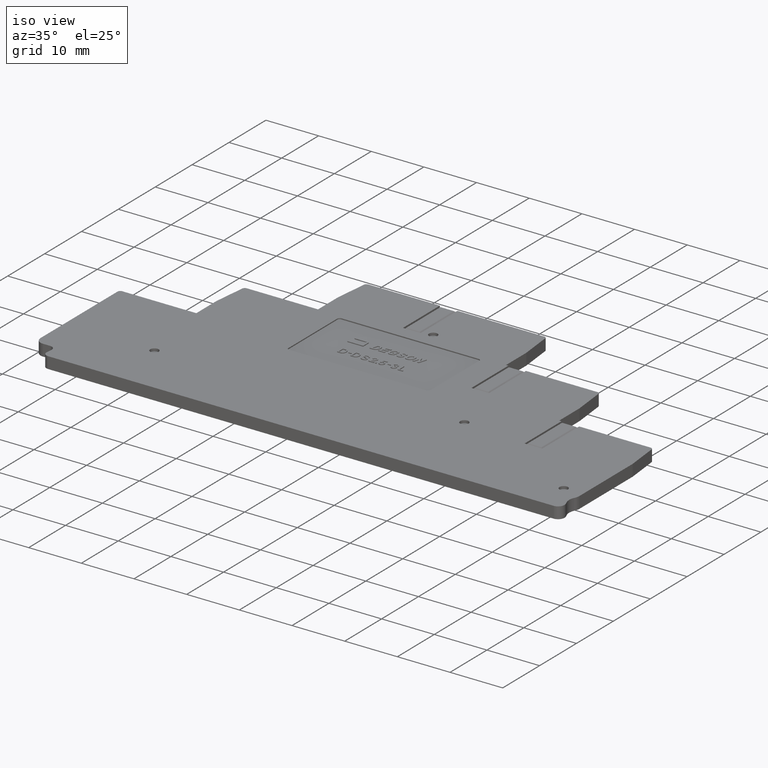
[diagram: clean part render]
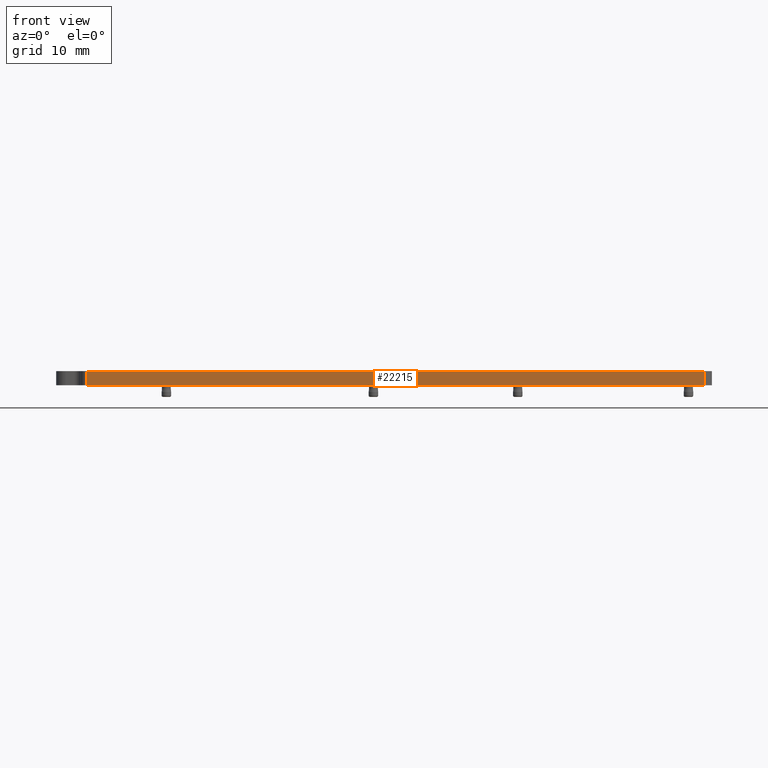
[diagram: tour spotlight — one face highlighted and labeled with its STEP entity id]
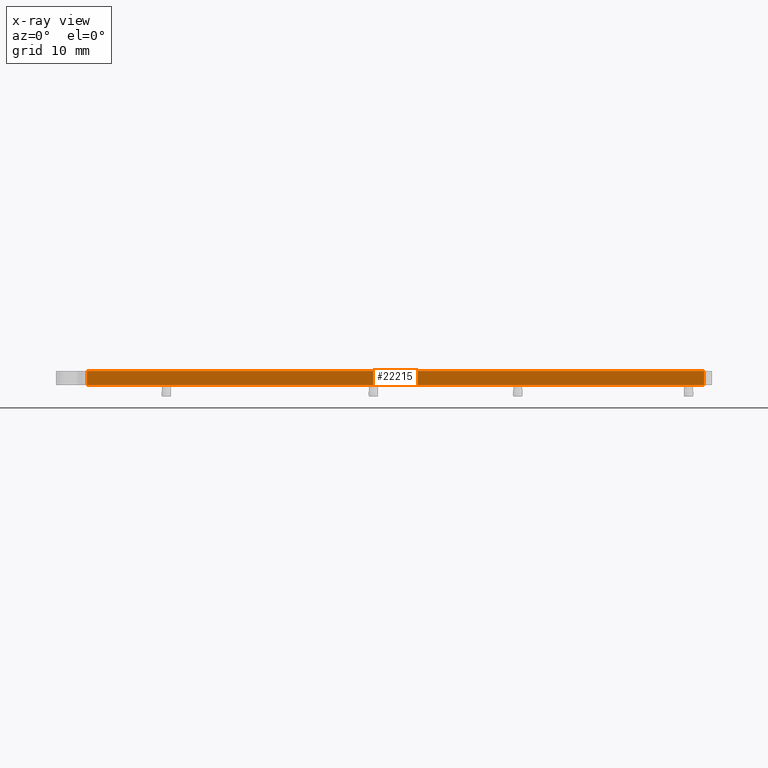
[diagram: x-ray of the same camera — body ghosted, this tour face saturated]
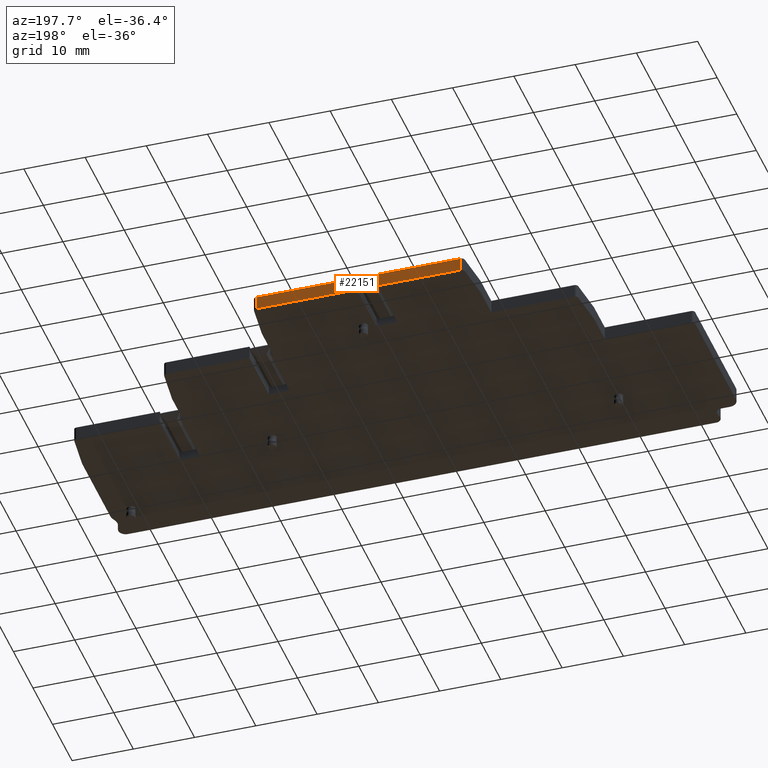
[diagram: tour spotlight — one face highlighted and labeled with its STEP entity id]
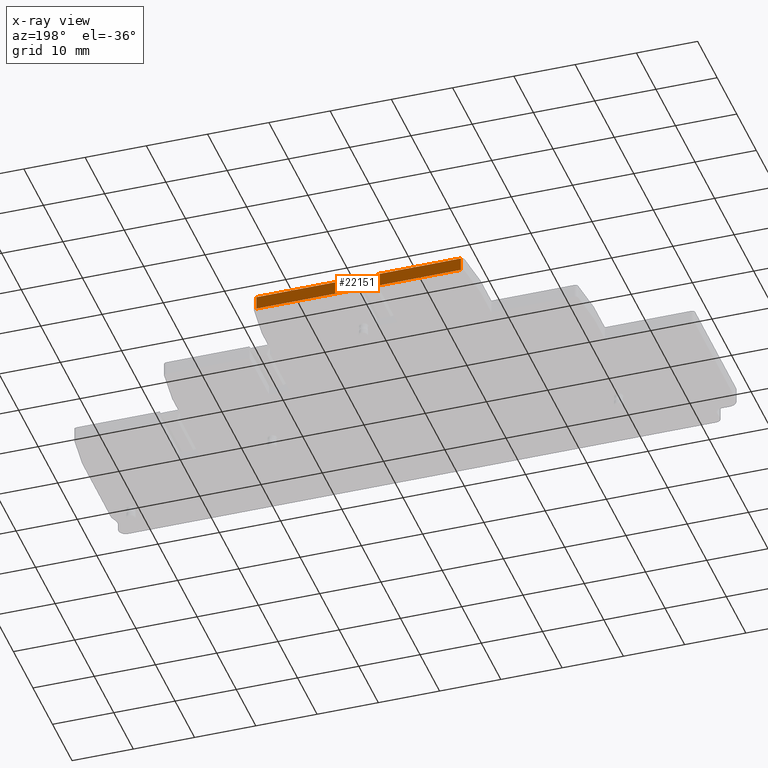
[diagram: x-ray of the same camera — body ghosted, this tour face saturated]
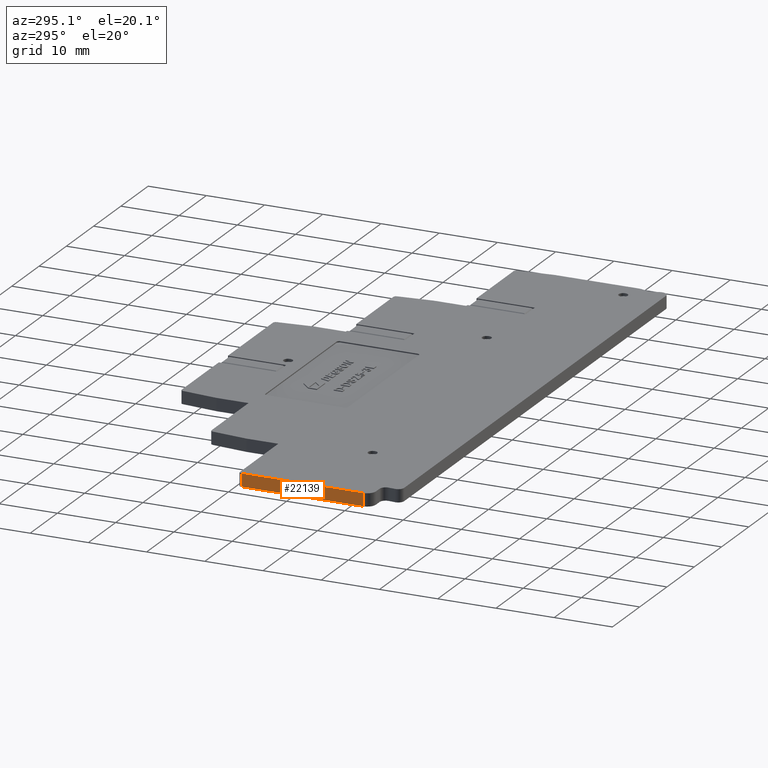
[diagram: tour spotlight — one face highlighted and labeled with its STEP entity id]
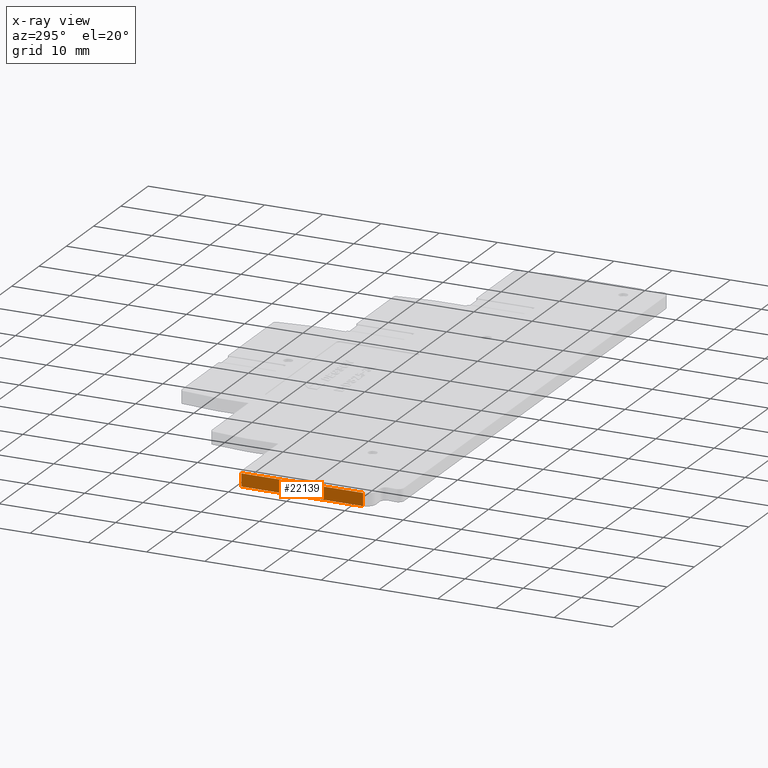
[diagram: x-ray of the same camera — body ghosted, this tour face saturated]
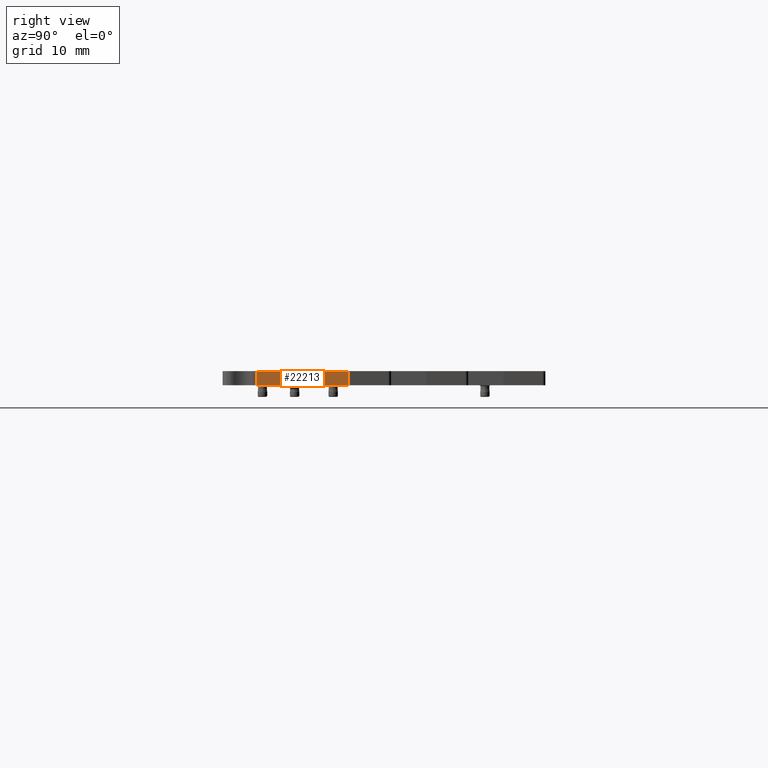
[diagram: tour spotlight — one face highlighted and labeled with its STEP entity id]
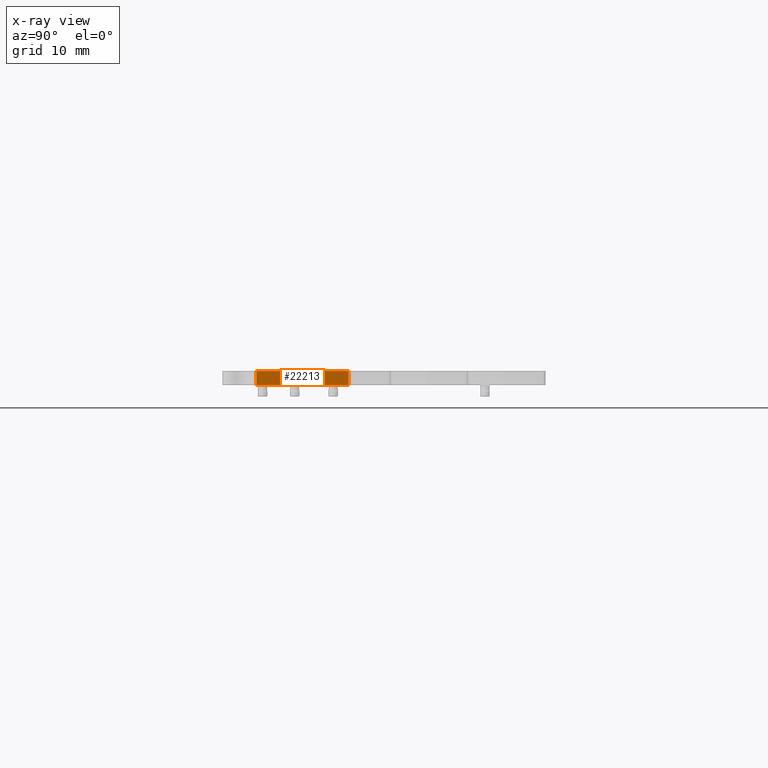
[diagram: x-ray of the same camera — body ghosted, this tour face saturated]
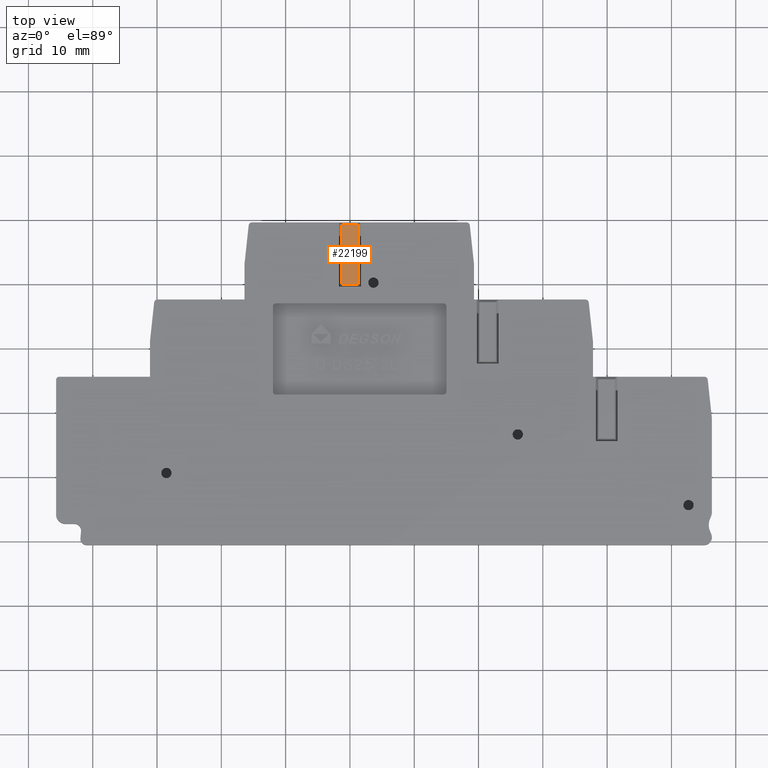
[diagram: tour spotlight — one face highlighted and labeled with its STEP entity id]
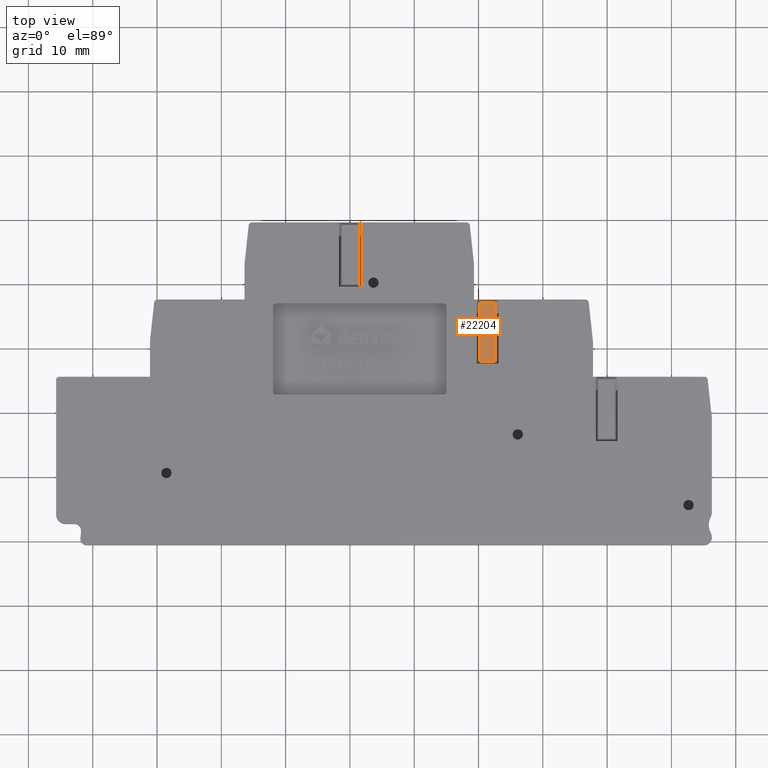
[diagram: tour spotlight — one face highlighted and labeled with its STEP entity id]
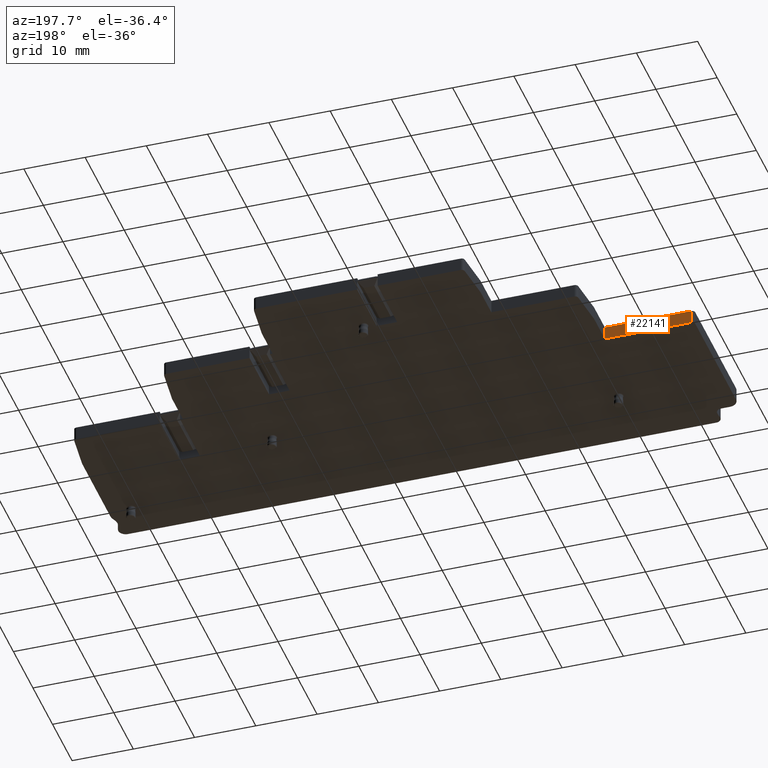
[diagram: tour spotlight — one face highlighted and labeled with its STEP entity id]
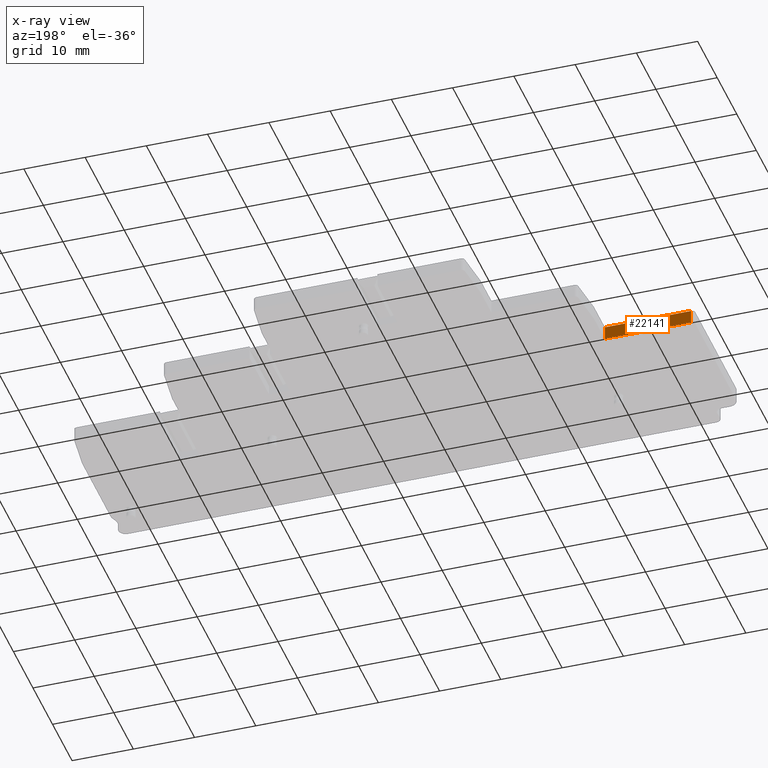
[diagram: x-ray of the same camera — body ghosted, this tour face saturated]
A machine part: a face-by-face anatomy tour. The part has 1172 B-rep faces; the first image is the clean iso view, then the 7 largest visible faces are spotlighted one at a time (largest first), each with its STEP entity span.

Face 1 — front view, entity #22215. An x-ray twin of the same camera follows (body ghosted, this face saturated) — the face is partly hidden behind the body. In plain terms, the highlighted planar face has unit normal (0, 1, 0).
Definition (entity closure, byte-faithful):
#485=PLANE('',#23592);
#1517=LINE('',#29904,#4055);
#2601=LINE('',#33256,#5139);
#2783=LINE('',#33898,#5321);
#2784=LINE('',#33899,#5322);
#4055=VECTOR('',#24353,1000.);
#5139=VECTOR('',#26625,1000.);
#5321=VECTOR('',#27101,1000.);
#5322=VECTOR('',#27102,1000.);
#9615=ORIENTED_EDGE('',*,*,#14800,.T.);
#9616=ORIENTED_EDGE('',*,*,#13165,.T.);
#9617=ORIENTED_EDGE('',*,*,#14801,.F.);
#9618=ORIENTED_EDGE('',*,*,#14535,.T.);
#13165=EDGE_CURVE('',#16450,#16448,#1517,.T.);
#14535=EDGE_CURVE('',#17391,#17393,#2601,.T.);
#14800=EDGE_CURVE('',#17393,#16450,#2783,.T.);
#14801=EDGE_CURVE('',#17391,#16448,#2784,.T.);
#16448=VERTEX_POINT('',#29902);
#16450=VERTEX_POINT('',#29905);
#17391=VERTEX_POINT('',#33251);
#17393=VERTEX_POINT('',#33255);
#19617=EDGE_LOOP('',(#9615,#9616,#9617,#9618));
#20899=FACE_BOUND('',#19617,.T.);
#22215=ADVANCED_FACE('',(#20899),#485,.F.);
#23592=AXIS2_PLACEMENT_3D('',#33897,#27099,#27100);
#24353=DIRECTION('',(0.,0.,-1.));
#26625=DIRECTION('',(0.,0.,1.));
#27099=DIRECTION('',(0.,1.,0.));
#27100=DIRECTION('',(0.,0.,1.));
#27101=DIRECTION('',(-1.,0.,0.));
#27102=DIRECTION('',(-1.,0.,0.));
#29902=CARTESIAN_POINT('',(-40.916902825996,-40.5999999999999,50.0000000020164));
#29904=CARTESIAN_POINT('',(-40.916902825996,-40.5999999999999,50.));
#29905=CARTESIAN_POINT('',(-40.916902825996,-40.5999999999999,52.2));
#33251=CARTESIAN_POINT('',(55.0941030948453,-40.5999999999999,50.));
#33255=CARTESIAN_POINT('',(55.0941030948453,-40.5999999999999,52.2));
#33256=CARTESIAN_POINT('',(55.0941030948453,-40.5999999999999,52.2000000020164));
#33897=CARTESIAN_POINT('',(56.300000000238,-40.5999999999999,50.));
#33898=CARTESIAN_POINT('',(56.300000000238,-40.5999999999999,52.2));
#33899=CARTESIAN_POINT('',(18.4999999999513,-40.5999999999999,50.0000000020164));

Face 2 — auxiliary view, entity #22151. An x-ray twin of the same camera follows (body ghosted, this face saturated) — the face is partly hidden behind the body. In plain terms, the highlighted planar face has unit normal (0, -1, 0).
Definition (entity closure, byte-faithful):
#427=PLANE('',#23513);
#2630=LINE('',#33398,#5168);
#2631=LINE('',#33400,#5169);
#2632=LINE('',#33402,#5170);
#2633=LINE('',#33404,#5171);
#2634=LINE('',#33406,#5172);
#2635=LINE('',#33408,#5173);
#2636=LINE('',#33410,#5174);
#2637=LINE('',#33412,#5175);
#2638=LINE('',#33414,#5176);
#2639=LINE('',#33416,#5177);
#2640=LINE('',#33418,#5178);
#2641=LINE('',#33420,#5179);
#5168=VECTOR('',#26788,1000.);
#5169=VECTOR('',#26791,1000.);
#5170=VECTOR('',#26792,1000.);
#5171=VECTOR('',#26793,1000.);
#5172=VECTOR('',#26794,1000.);
#5173=VECTOR('',#26795,1000.);
#5174=VECTOR('',#26796,1000.);
#5175=VECTOR('',#26797,1000.);
#5176=VECTOR('',#26798,1000.);
#5177=VECTOR('',#26799,1000.);
#5178=VECTOR('',#26800,1000.);
#5179=VECTOR('',#26801,1000.);
#8952=ORIENTED_EDGE('',*,*,#14596,.T.);
#8953=ORIENTED_EDGE('',*,*,#14597,.T.);
#8954=ORIENTED_EDGE('',*,*,#14598,.T.);
#8955=ORIENTED_EDGE('',*,*,#14599,.F.);
#8956=ORIENTED_EDGE('',*,*,#14600,.T.);
#8957=ORIENTED_EDGE('',*,*,#14601,.T.);
#8958=ORIENTED_EDGE('',*,*,#14602,.T.);
#8959=ORIENTED_EDGE('',*,*,#14603,.F.);
#8960=ORIENTED_EDGE('',*,*,#14604,.T.);
#8961=ORIENTED_EDGE('',*,*,#14605,.T.);
#8962=ORIENTED_EDGE('',*,*,#14606,.T.);
#8963=ORIENTED_EDGE('',*,*,#14607,.F.);
#14596=EDGE_CURVE('',#17438,#17439,#2630,.T.);
#14597=EDGE_CURVE('',#17439,#17440,#2631,.T.);
#14598=EDGE_CURVE('',#17440,#17441,#2632,.T.);
#14599=EDGE_CURVE('',#17442,#17441,#2633,.T.);
#14600=EDGE_CURVE('',#17442,#17443,#2634,.T.);
#14601=EDGE_CURVE('',#17443,#17444,#2635,.T.);
#14602=EDGE_CURVE('',#17444,#17445,#2636,.T.);
#14603=EDGE_CURVE('',#17446,#17445,#2637,.T.);
#14604=EDGE_CURVE('',#17446,#17447,#2638,.T.);
#14605=EDGE_CURVE('',#17447,#17448,#2639,.T.);
#14606=EDGE_CURVE('',#17448,#17449,#2640,.T.);
#14607=EDGE_CURVE('',#17438,#17449,#2641,.T.);
#17438=VERTEX_POINT('',#33395);
#17439=VERTEX_POINT('',#33397);
#17440=VERTEX_POINT('',#33401);
#17441=VERTEX_POINT('',#33403);
#17442=VERTEX_POINT('',#33405);
#17443=VERTEX_POINT('',#33407);
#17444=VERTEX_POINT('',#33409);
#17445=VERTEX_POINT('',#33411);
#17446=VERTEX_POINT('',#33413);
#17447=VERTEX_POINT('',#33415);
#17448=VERTEX_POINT('',#33417);
#17449=VERTEX_POINT('',#33419);
#19536=EDGE_LOOP('',(#8952,#8953,#8954,#8955,#8956,#8957,#8958,#8959,#8960,
#8961,#8962,#8963));
#20818=FACE_BOUND('',#19536,.T.);
#22151=ADVANCED_FACE('',(#20818),#427,.F.);
#23513=AXIS2_PLACEMENT_3D('',#33399,#26789,#26790);
#26788=DIRECTION('',(0.,0.,1.));
#26789=DIRECTION('',(2.28380961825284E-15,-1.,0.));
#26790=DIRECTION('',(1.,2.28463081786145E-15,0.));
#26791=DIRECTION('',(1.,2.28380961825284E-15,0.));
#26792=DIRECTION('',(0.,0.,-1.));
#26793=DIRECTION('',(-1.,2.08445276317359E-9,-2.10868151333993E-9));
#26794=DIRECTION('',(0.,0.,1.));
#26795=DIRECTION('',(1.,2.28380961825284E-15,0.));
#26796=DIRECTION('',(0.,0.,-1.));
#26797=DIRECTION('',(1.,2.28380961825284E-15,0.));
#26798=DIRECTION('',(0.,0.,1.));
#26799=DIRECTION('',(-1.,2.08445276317359E-9,2.37226670250741E-9));
#26800=DIRECTION('',(0.,0.,-1.));
#26801=DIRECTION('',(1.,2.28380961825284E-15,0.));
#33395=CARTESIAN_POINT('',(-15.250955103733,9.59999999999987,50.));
#33397=CARTESIAN_POINT('',(-15.250955103733,9.59999999999987,52.2));
#33398=CARTESIAN_POINT('',(-15.250955103733,9.59999999999987,52.2));
#33399=CARTESIAN_POINT('',(-16.4000000000002,9.59999999999987,50.));
#33400=CARTESIAN_POINT('',(-16.4000000000002,9.59999999999987,52.2));
#33401=CARTESIAN_POINT('',(-1.67500012629987,9.5999999999999,52.2));
#33402=CARTESIAN_POINT('',(-1.67500012629987,9.5999999999999,50.));
#33403=CARTESIAN_POINT('',(-1.67500012629987,9.5999999999999,51.800000000079));
#33404=CARTESIAN_POINT('',(3.47500000004843,9.5999999950064,51.800000005588));
#33405=CARTESIAN_POINT('',(1.67499987370023,9.59999999999991,51.800000000079));
#33406=CARTESIAN_POINT('',(1.67499987370023,9.59999999999991,50.));
#33407=CARTESIAN_POINT('',(1.67499987370023,9.59999999999991,52.2));
#33408=CARTESIAN_POINT('',(-16.4000000000002,9.59999999999987,52.2));
#33409=CARTESIAN_POINT('',(18.150955103419,9.59999999999994,52.2));
#33410=CARTESIAN_POINT('',(18.150955103419,9.59999999999994,50.));
#33411=CARTESIAN_POINT('',(18.150955103419,9.59999999999994,50.));
#33412=CARTESIAN_POINT('',(-16.4000000000002,9.59999999999987,50.));
#33413=CARTESIAN_POINT('',(1.67499987370023,9.59999999999991,50.));
#33414=CARTESIAN_POINT('',(1.67499987370023,9.59999999999991,50.));
#33415=CARTESIAN_POINT('',(1.67499987370023,9.59999999999991,51.5999999999112));
#33416=CARTESIAN_POINT('',(1.67499987374865,9.5999999987584,51.5999999979836));
#33417=CARTESIAN_POINT('',(-1.67500012629987,9.5999999999999,51.5999999999111));
#33418=CARTESIAN_POINT('',(-1.67500012629987,9.5999999999999,50.));
#33419=CARTESIAN_POINT('',(-1.67500012629987,9.5999999999999,50.));
#33420=CARTESIAN_POINT('',(-16.4000000000002,9.59999999999987,50.));

Face 3 — auxiliary view, entity #22139. An x-ray twin of the same camera follows (body ghosted, this face saturated) — the face is partly hidden behind the body. In plain terms, the highlighted planar face has unit normal (1, 0, 0).
Definition (entity closure, byte-faithful):
#420=PLANE('',#23491);
#1522=LINE('',#29916,#4060);
#2605=LINE('',#33328,#5143);
#2606=LINE('',#33330,#5144);
#2607=LINE('',#33332,#5145);
#4060=VECTOR('',#24364,1000.);
#5143=VECTOR('',#26721,1000.);
#5144=VECTOR('',#26722,1000.);
#5145=VECTOR('',#26723,1000.);
#8904=ORIENTED_EDGE('',*,*,#13171,.T.);
#8905=ORIENTED_EDGE('',*,*,#14561,.T.);
#8906=ORIENTED_EDGE('',*,*,#14562,.T.);
#8907=ORIENTED_EDGE('',*,*,#14563,.F.);
#13171=EDGE_CURVE('',#16454,#16455,#1522,.T.);
#14561=EDGE_CURVE('',#16455,#17416,#2605,.T.);
#14562=EDGE_CURVE('',#17416,#17417,#2606,.T.);
#14563=EDGE_CURVE('',#16454,#17417,#2607,.T.);
#16454=VERTEX_POINT('',#29917);
#16455=VERTEX_POINT('',#29918);
#17416=VERTEX_POINT('',#33329);
#17417=VERTEX_POINT('',#33331);
#19524=EDGE_LOOP('',(#8904,#8905,#8906,#8907));
#20806=FACE_BOUND('',#19524,.T.);
#22139=ADVANCED_FACE('',(#20806),#420,.F.);
#23491=AXIS2_PLACEMENT_3D('',#33327,#26719,#26720);
#24364=DIRECTION('',(0.,0.,1.));
#26719=DIRECTION('',(1.,3.75856753128315E-15,0.));
#26720=DIRECTION('',(-3.76088049591772E-15,1.,0.));
#26721=DIRECTION('',(-3.75856753128315E-15,1.,0.));
#26722=DIRECTION('',(0.,0.,-1.));
#26723=DIRECTION('',(-3.75856753128315E-15,1.,0.));
#29916=CARTESIAN_POINT('',(-45.6999999996991,-35.8000000000001,49.05));
#29917=CARTESIAN_POINT('',(-45.6999999996991,-35.8000000000001,50.));
#29918=CARTESIAN_POINT('',(-45.6999999996991,-35.8000000000001,52.2));
#33327=CARTESIAN_POINT('',(-45.7000000000001,-26.3999999999996,50.));
#33328=CARTESIAN_POINT('',(-45.7000000000002,-1.7176653617964E-13,52.2));
#33329=CARTESIAN_POINT('',(-45.7000000000001,-14.8999970315313,52.2));
#33330=CARTESIAN_POINT('',(-45.7000000000001,-14.8999999999998,50.));
#33331=CARTESIAN_POINT('',(-45.7000000000001,-14.8999999999998,50.));
#33332=CARTESIAN_POINT('',(-45.7000000000002,-1.7176653617964E-13,50.));

Face 4 — right view, entity #22213. An x-ray twin of the same camera follows (body ghosted, this face saturated) — the face is partly hidden behind the body. In plain terms, the highlighted planar face has unit normal (-1, -0, 0).
Definition (entity closure, byte-faithful):
#483=PLANE('',#23587);
#2602=LINE('',#33258,#5140);
#2708=LINE('',#33575,#5246);
#2781=LINE('',#33724,#5319);
#2782=LINE('',#33725,#5320);
#5140=VECTOR('',#26628,1000.);
#5246=VECTOR('',#26936,1000.);
#5319=VECTOR('',#27089,1000.);
#5320=VECTOR('',#27090,1000.);
#9224=ORIENTED_EDGE('',*,*,#14536,.T.);
#9225=ORIENTED_EDGE('',*,*,#14759,.F.);
#9226=ORIENTED_EDGE('',*,*,#14686,.T.);
#9227=ORIENTED_EDGE('',*,*,#14760,.T.);
#14536=EDGE_CURVE('',#17394,#17395,#2602,.T.);
#14686=EDGE_CURVE('',#17502,#17503,#2708,.T.);
#14759=EDGE_CURVE('',#17502,#17395,#2781,.T.);
#14760=EDGE_CURVE('',#17503,#17394,#2782,.T.);
#17394=VERTEX_POINT('',#33259);
#17395=VERTEX_POINT('',#33260);
#17502=VERTEX_POINT('',#33572);
#17503=VERTEX_POINT('',#33574);
#19598=EDGE_LOOP('',(#9224,#9225,#9226,#9227));
#20880=FACE_BOUND('',#19598,.T.);
#22213=ADVANCED_FACE('',(#20880),#483,.F.);
#23587=AXIS2_PLACEMENT_3D('',#33723,#27087,#27088);
#26628=DIRECTION('',(0.,0.,-1.));
#26936=DIRECTION('',(0.,0.,1.));
#27087=DIRECTION('',(-1.,-3.46944694200445E-15,0.));
#27088=DIRECTION('',(3.46944695195361E-15,-1.,0.));
#27089=DIRECTION('',(3.46944694200445E-15,-1.,0.));
#27090=DIRECTION('',(3.46944694200445E-15,-1.,0.));
#33258=CARTESIAN_POINT('',(56.300000000238,-35.3738493904196,49.9));
#33259=CARTESIAN_POINT('',(56.300000000238,-35.3738493904196,52.2000000020164));
#33260=CARTESIAN_POINT('',(56.2999999984649,-35.3738493904196,50.0000000020164));
#33572=CARTESIAN_POINT('',(56.2999999984648,-21.0073818596385,50.));
#33574=CARTESIAN_POINT('',(56.2999999984648,-21.0073818596385,52.2000000020164));
#33575=CARTESIAN_POINT('',(56.2999999984648,-21.0073818596385,52.2000000020164));
#33723=CARTESIAN_POINT('',(56.2999999984648,-14.3999999982885,50.0000000020164));
#33724=CARTESIAN_POINT('',(56.2999999984648,-14.3999999982885,50.0000000020164));
#33725=CARTESIAN_POINT('',(56.2999999984648,-14.3999999982885,52.2000000020164));

Face 5 — top view, entity #22199. In plain terms, the highlighted planar face has unit normal (0, 0, 1).
Definition (entity closure, byte-faithful):
#469=PLANE('',#23573);
#2713=LINE('',#33585,#5251);
#2767=LINE('',#33690,#5305);
#2768=LINE('',#33692,#5306);
#2769=LINE('',#33694,#5307);
#5251=VECTOR('',#26945,1000.);
#5305=VECTOR('',#27045,1000.);
#5306=VECTOR('',#27048,1000.);
#5307=VECTOR('',#27049,1000.);
#9168=ORIENTED_EDGE('',*,*,#14746,.T.);
#9169=ORIENTED_EDGE('',*,*,#14747,.T.);
#9170=ORIENTED_EDGE('',*,*,#14691,.T.);
#9171=ORIENTED_EDGE('',*,*,#14745,.T.);
#14691=EDGE_CURVE('',#17507,#17506,#2713,.T.);
#14745=EDGE_CURVE('',#17506,#17534,#2767,.T.);
#14746=EDGE_CURVE('',#17534,#17535,#2768,.T.);
#14747=EDGE_CURVE('',#17535,#17507,#2769,.T.);
#17506=VERTEX_POINT('',#33584);
#17507=VERTEX_POINT('',#33586);
#17534=VERTEX_POINT('',#33689);
#17535=VERTEX_POINT('',#33693);
#19584=EDGE_LOOP('',(#9168,#9169,#9170,#9171));
#20866=FACE_BOUND('',#19584,.T.);
#22199=ADVANCED_FACE('',(#20866),#469,.T.);
#23573=AXIS2_PLACEMENT_3D('',#33691,#27046,#27047);
#26945=DIRECTION('',(-1.,0.,0.));
#27045=DIRECTION('',(-6.12809923572081E-15,-1.,0.));
#27046=DIRECTION('',(0.,0.,1.));
#27047=DIRECTION('',(1.,0.,0.));
#27048=DIRECTION('',(1.,0.,0.));
#27049=DIRECTION('',(-3.06404961786037E-15,1.,0.));
#33584=CARTESIAN_POINT('',(-1.27500012629981,9.2000000000789,52.2));
#33585=CARTESIAN_POINT('',(1.27499987370025,9.2000000000789,52.2));
#33586=CARTESIAN_POINT('',(1.27499987370019,9.2000000000789,52.2));
#33689=CARTESIAN_POINT('',(-1.27500012629993,-2.14145506882701E-11,52.2));
#33690=CARTESIAN_POINT('',(-1.27500012629987,9.2000000000789,52.2));
#33691=CARTESIAN_POINT('',(3.47499999999997,0.199999987478649,52.2));
#33692=CARTESIAN_POINT('',(-1.6250001262999,-2.14145506882701E-11,52.2));
#33693=CARTESIAN_POINT('',(1.27499987370022,-2.15290424376846E-11,52.2));
#33694=CARTESIAN_POINT('',(1.27499987370022,-2.15290424376846E-11,52.2));

Face 6 — top view, entity #22204. In plain terms, the highlighted planar face has unit normal (0, 0, 1).
Definition (entity closure, byte-faithful):
#474=PLANE('',#23578);
#2733=LINE('',#33625,#5271);
#2772=LINE('',#33702,#5310);
#2773=LINE('',#33704,#5311);
#2774=LINE('',#33706,#5312);
#5271=VECTOR('',#26981,1000.);
#5310=VECTOR('',#27060,1000.);
#5311=VECTOR('',#27063,1000.);
#5312=VECTOR('',#27064,1000.);
#9188=ORIENTED_EDGE('',*,*,#14751,.T.);
#9189=ORIENTED_EDGE('',*,*,#14752,.T.);
#9190=ORIENTED_EDGE('',*,*,#14711,.T.);
#9191=ORIENTED_EDGE('',*,*,#14750,.T.);
#14711=EDGE_CURVE('',#17519,#17518,#2733,.T.);
#14750=EDGE_CURVE('',#17518,#17536,#2772,.T.);
#14751=EDGE_CURVE('',#17536,#17537,#2773,.T.);
#14752=EDGE_CURVE('',#17537,#17519,#2774,.T.);
#17518=VERTEX_POINT('',#33624);
#17519=VERTEX_POINT('',#33626);
#17536=VERTEX_POINT('',#33701);
#17537=VERTEX_POINT('',#33705);
#19589=EDGE_LOOP('',(#9188,#9189,#9190,#9191));
#20871=FACE_BOUND('',#19589,.T.);
#22204=ADVANCED_FACE('',(#20871),#474,.T.);
#23578=AXIS2_PLACEMENT_3D('',#33703,#27061,#27062);
#26981=DIRECTION('',(-1.,0.,0.));
#27060=DIRECTION('',(-6.12809923572081E-15,-1.,0.));
#27061=DIRECTION('',(0.,0.,1.));
#27062=DIRECTION('',(1.,0.,0.));
#27063=DIRECTION('',(1.,0.,0.));
#27064=DIRECTION('',(-3.06404961786037E-15,1.,0.));
#33624=CARTESIAN_POINT('',(20.125047325831,-2.79999996599092,52.2));
#33625=CARTESIAN_POINT('',(22.6750473258311,-2.79999996599092,52.2));
#33626=CARTESIAN_POINT('',(22.675047325831,-2.79999996599092,52.2));
#33701=CARTESIAN_POINT('',(20.1250473258309,-11.9999999660913,52.2));
#33702=CARTESIAN_POINT('',(20.125047325831,-2.79999996599092,52.2));
#33703=CARTESIAN_POINT('',(24.8750474521308,-11.7999999785912,52.2));
#33704=CARTESIAN_POINT('',(19.7750473258309,-11.9999999660913,52.2));
#33705=CARTESIAN_POINT('',(22.6750473258311,-11.9999999660914,52.2));
#33706=CARTESIAN_POINT('',(22.6750473258311,-11.9999999660914,52.2));

Face 7 — auxiliary view, entity #22141. An x-ray twin of the same camera follows (body ghosted, this face saturated) — the face is partly hidden behind the body. In plain terms, the highlighted planar face has unit normal (0, -1, 0).
Definition (entity closure, byte-faithful):
#421=PLANE('',#23495);
#2608=LINE('',#33338,#5146);
#2609=LINE('',#33340,#5147);
#2610=LINE('',#33342,#5148);
#2611=LINE('',#33344,#5149);
#5146=VECTOR('',#26730,1000.);
#5147=VECTOR('',#26733,1000.);
#5148=VECTOR('',#26734,1000.);
#5149=VECTOR('',#26735,1000.);
#8912=ORIENTED_EDGE('',*,*,#14567,.T.);
#8913=ORIENTED_EDGE('',*,*,#14568,.F.);
#8914=ORIENTED_EDGE('',*,*,#14569,.F.);
#8915=ORIENTED_EDGE('',*,*,#14566,.T.);
#14566=EDGE_CURVE('',#17418,#17419,#2608,.T.);
#14567=EDGE_CURVE('',#17419,#17420,#2609,.T.);
#14568=EDGE_CURVE('',#17421,#17420,#2610,.T.);
#14569=EDGE_CURVE('',#17418,#17421,#2611,.T.);
#17418=VERTEX_POINT('',#33335);
#17419=VERTEX_POINT('',#33337);
#17420=VERTEX_POINT('',#33341);
#17421=VERTEX_POINT('',#33343);
#19526=EDGE_LOOP('',(#8912,#8913,#8914,#8915));
#20808=FACE_BOUND('',#19526,.T.);
#22141=ADVANCED_FACE('',(#20808),#421,.F.);
#23495=AXIS2_PLACEMENT_3D('',#33339,#26731,#26732);
#26730=DIRECTION('',(0.,0.,1.));
#26731=DIRECTION('',(2.36016799452626E-15,-1.,0.));
#26732=DIRECTION('',(1.,2.36095865080443E-15,0.));
#26733=DIRECTION('',(1.,2.36016799452626E-15,0.));
#26734=DIRECTION('',(0.,0.,1.));
#26735=DIRECTION('',(1.,2.36016799452626E-15,0.));
#33335=CARTESIAN_POINT('',(-45.2000000000001,-14.3999999999998,50.));
#33337=CARTESIAN_POINT('',(-45.1999965118655,-14.3999999999998,52.2));
#33338=CARTESIAN_POINT('',(-45.2000000000001,-14.3999999999998,50.));
#33339=CARTESIAN_POINT('',(-45.7000000000001,-14.3999999999998,50.));
#33340=CARTESIAN_POINT('',(-45.7000000000001,-14.3999999999998,52.2));
#33341=CARTESIAN_POINT('',(-31.1000000000001,-14.3999999999998,52.2));
#33342=CARTESIAN_POINT('',(-31.1000000000001,-14.3999999999998,50.));
#33343=CARTESIAN_POINT('',(-31.1000000000001,-14.3999999999998,50.));
#33344=CARTESIAN_POINT('',(-45.7000000000001,-14.3999999999998,50.));